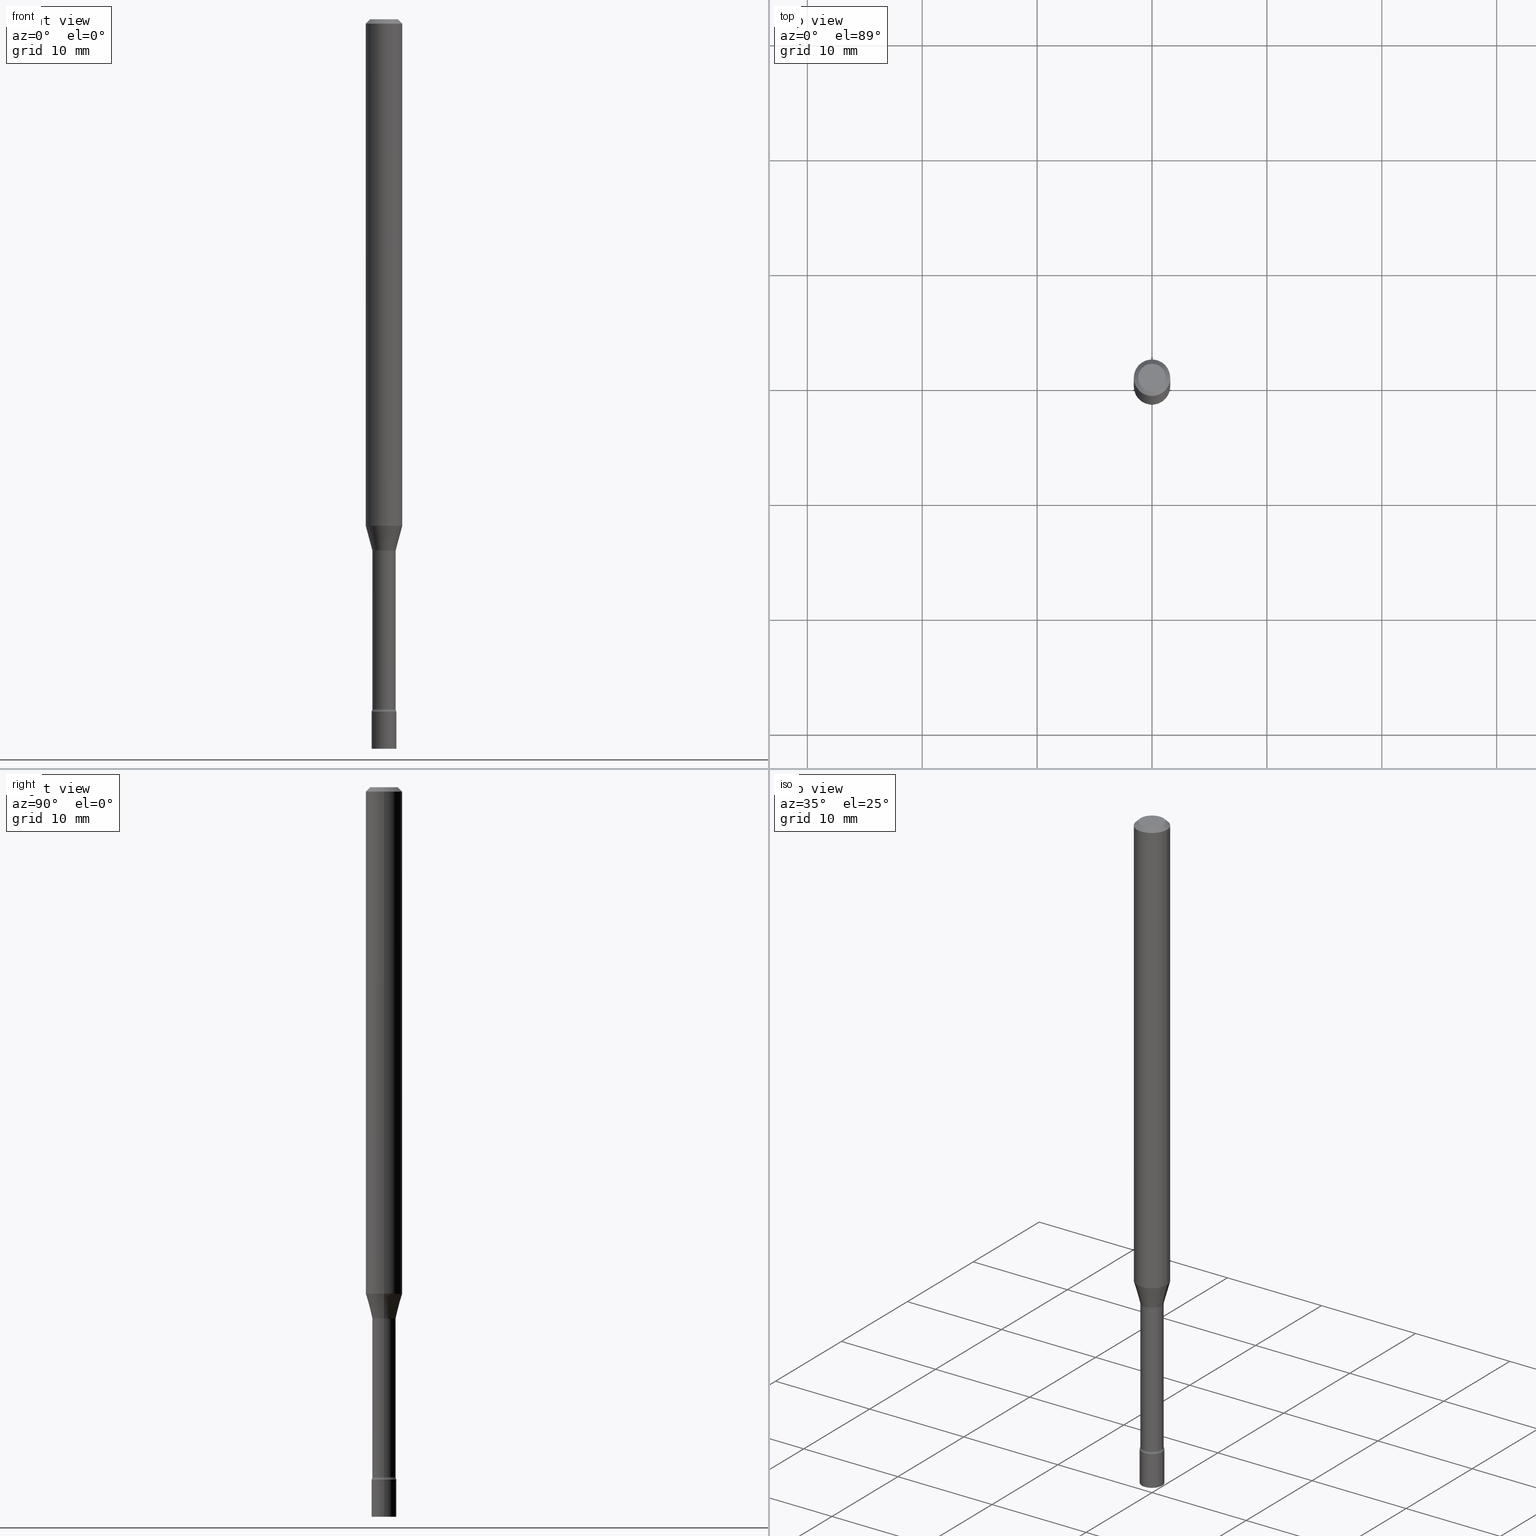
[diagram: canonical four-view strip — front | top / right | iso, engineering-drawing reading convention]
A machine part, canonical four-view strip (front | top / right | iso — engineering-drawing reading convention). The complete STEP part file that produces these views, byte-faithful:
ISO-10303-21;
HEADER;
FILE_DESCRIPTION (( 'STEP AP203' ),
    '1' );
FILE_NAME ('09734.STEP',
    '2024-03-09T01:25:39',
    ( '' ),
    ( '' ),
    'SwSTEP 2.0',
    'SolidWorks 2023',
    '' );
FILE_SCHEMA (( 'CONFIG_CONTROL_DESIGN' ));
ENDSEC;

DATA;
#1 = CIRCLE ( 'NONE', #408, 0.06250000000000000000 ) ;
#2 = CIRCLE ( 'NONE', #198, 0.04749999999999999362 ) ;
#3 = ORGANIZATION ( 'UNSPECIFIED', 'UNSPECIFIED', '' ) ;
#4 = CARTESIAN_POINT ( 'NONE',  ( 0.000000000000000000, 0.000000000000000000, 0.000000000000000000 ) ) ;
#5 = ORIENTED_EDGE ( 'NONE', *, *, #212, .F. ) ;
#6 = ADVANCED_FACE ( 'NONE', ( #141 ), #303, .T. ) ;
#7 = PERSON_AND_ORGANIZATION ( #216, #3 ) ;
#8 = DIRECTION ( 'NONE',  ( 1.000000000000000000, -6.982962677686266711E-15, 4.876176775795935793E-29 ) ) ;
#9 = ORIENTED_EDGE ( 'NONE', *, *, #414, .F. ) ;
#10 = APPLICATION_CONTEXT ( 'configuration controlled 3d designs of mechanical parts and assemblies' ) ;
#11 = CLOSED_SHELL ( 'NONE', ( #430, #333, #119, #347, #305, #244, #88, #174, #204, #394, #484, #474, #109, #183 ) ) ;
#12 = AXIS2_PLACEMENT_3D ( 'NONE', #36, #280, #211 ) ;
#13 = VERTEX_POINT ( 'NONE', #80 ) ;
#14 = PERSON_AND_ORGANIZATION ( #216, #3 ) ;
#15 = ORIENTED_EDGE ( 'NONE', *, *, #17, .T. ) ;
#16 = CALENDAR_DATE ( 2024, 8, 3 ) ;
#17 = EDGE_CURVE ( 'NONE', #218, #222, #506, .T. ) ;
#18 = PERSON_AND_ORGANIZATION ( #216, #3 ) ;
#19 = ORIENTED_EDGE ( 'NONE', *, *, #81, .T. ) ;
#20 =( CONVERSION_BASED_UNIT ( 'INCH', #53 ) LENGTH_UNIT ( ) NAMED_UNIT ( #466 ) );
#21 = LINE ( 'NONE', #135, #291 ) ;
#22 = CIRCLE ( 'NONE', #319, 0.03994999999999999246 ) ;
#23 = AXIS2_PLACEMENT_3D ( 'NONE', #294, #453, #263 ) ;
#24 = ORIENTED_EDGE ( 'NONE', *, *, #59, .F. ) ;
#25 = EDGE_CURVE ( 'NONE', #298, #349, #300, .T. ) ;
#26 = DIRECTION ( 'NONE',  ( -2.438088387897960049E-29, 3.491481338843145188E-15, 1.000000000000000000 ) ) ;
#27 = EDGE_LOOP ( 'NONE', ( #417, #429, #97, #344 ) ) ;
#28 = DIRECTION ( 'NONE',  ( -2.445468806185136597E-29, 3.491481338843145583E-15, 1.000000000000000000 ) ) ;
#29 = APPROVAL_STATUS ( 'not_yet_approved' ) ;
#30 = EDGE_LOOP ( 'NONE', ( #172, #350, #268, #127 ) ) ;
#31 = FACE_OUTER_BOUND ( 'NONE', #27, .T. ) ;
#32 = AXIS2_PLACEMENT_3D ( 'NONE', #197, #357, #513 ) ;
#33 = AXIS2_PLACEMENT_3D ( 'NONE', #213, #481, #152 ) ;
#34 = LOCAL_TIME ( 20, 25, 39.00000000000000000, #385 ) ;
#35 = CYLINDRICAL_SURFACE ( 'NONE', #492, 0.03995000000000000634 ) ;
#36 = CARTESIAN_POINT ( 'NONE',  ( 5.780192113673479644E-29, -8.252582428684399354E-15, -2.363633549139569023 ) ) ;
#37 = CARTESIAN_POINT ( 'NONE',  ( -0.05494999999999999885, -7.862139195384223915E-15, -2.363633549139569023 ) ) ;
#38 = DIRECTION ( 'NONE',  ( -2.445468806185136877E-29, 3.491481338843145188E-15, 1.000000000000000000 ) ) ;
#39 = DIRECTION ( 'NONE',  ( 2.445468806185136597E-29, -3.491481338843145583E-15, -1.000000000000000000 ) ) ;
#40 = CARTESIAN_POINT ( 'NONE',  ( 0.000000000000000000, 0.000000000000000000, 0.000000000000000000 ) ) ;
#41 = CARTESIAN_POINT ( 'NONE',  ( -0.04249999999999999611, -8.203267878723858989E-15, -2.500000000000000000 ) ) ;
#42 = AXIS2_PLACEMENT_3D ( 'NONE', #318, #111, #238 ) ;
#43 = CARTESIAN_POINT ( 'NONE',  ( 0.03995000000000000634, -2.789693589735664269E-16, 1.948032621930476817E-30 ) ) ;
#44 = DIRECTION ( 'NONE',  ( 1.000000000000000000, -6.982962677686276177E-15, 0.000000000000000000 ) ) ;
#45 = FACE_OUTER_BOUND ( 'NONE', #352, .T. ) ;
#46 = VERTEX_POINT ( 'NONE', #41 ) ;
#47 = ORIENTED_EDGE ( 'NONE', *, *, #194, .F. ) ;
#48 = EDGE_CURVE ( 'NONE', #176, #370, #337, .T. ) ;
#49 = AXIS2_PLACEMENT_3D ( 'NONE', #77, #39, #208 ) ;
#50 = LOCAL_TIME ( 20, 25, 39.00000000000000000, #336 ) ;
#51 = PERSON_AND_ORGANIZATION_ROLE ( 'design_owner' ) ;
#52 = EDGE_LOOP ( 'NONE', ( #105, #264, #89, #229 ) ) ;
#53 = LENGTH_MEASURE_WITH_UNIT ( LENGTH_MEASURE( 0.02539999999999999897 ), #441 );
#54 = CYLINDRICAL_SURFACE ( 'NONE', #465, 0.06250000000000000000 ) ;
#55 = MANIFOLD_SOLID_BREP ( 'Body-Move/Copy2[2]', #11 ) ;
#56 = DATE_AND_TIME ( #415, #508 ) ;
#57 = AXIS2_PLACEMENT_3D ( 'NONE', #516, #73, #157 ) ;
#58 = CONICAL_SURFACE ( 'NONE', #49, 0.06250000000000000000, 0.7853981633974483900 ) ;
#59 = EDGE_CURVE ( 'NONE', #427, #233, #402, .T. ) ;
#60 = ORIENTED_EDGE ( 'NONE', *, *, #444, .F. ) ;
#61 = CARTESIAN_POINT ( 'NONE',  ( 7.070806723891919892E-46, -1.009523804376275404E-31, -2.891391092786900929E-17 ) ) ;
#62 = ORIENTED_EDGE ( 'NONE', *, *, #59, .T. ) ;
#63 =( NAMED_UNIT ( * ) SI_UNIT ( $, .STERADIAN. ) SOLID_ANGLE_UNIT ( ) );
#64 = MANIFOLD_SOLID_BREP ( 'Body-Move/Copy2[1]', #84 ) ;
#65 = VERTEX_POINT ( 'NONE', #472 ) ;
#66 = EDGE_CURVE ( 'NONE', #124, #46, #113, .T. ) ;
#67 = PLANE ( 'NONE',  #85 ) ;
#68 = AXIS2_PLACEMENT_3D ( 'NONE', #327, #373, #169 ) ;
#69 = ORIENTED_EDGE ( 'NONE', *, *, #467, .F. ) ;
#70 = ORIENTED_EDGE ( 'NONE', *, *, #66, .T. ) ;
#71 = CARTESIAN_POINT ( 'NONE',  ( 3.316907271900976096E-16, 0.04749999999999999362, -1.803023190589839165E-16 ) ) ;
#72 = CARTESIAN_POINT ( 'NONE',  ( -0.04249999999999999611, 3.019806626980425514E-16, -2.090547413358334859E-30 ) ) ;
#73 = DIRECTION ( 'NONE',  ( -2.445468806185136597E-29, 3.491481338843145583E-15, 1.000000000000000000 ) ) ;
#74 = DIRECTION ( 'NONE',  ( 1.000000000000000000, -6.982962677686266711E-15, 4.876176775795935793E-29 ) ) ;
#75 = LINE ( 'NONE', #397, #162 ) ;
#76 = APPROVAL_PERSON_ORGANIZATION ( #382, #235, #203 ) ;
#77 = CARTESIAN_POINT ( 'NONE',  ( 3.668203209277712094E-31, -5.237222008264728876E-17, -0.01500000000000003067 ) ) ;
#78 = CARTESIAN_POINT ( 'NONE',  ( 5.800652008271142608E-29, -8.281793735735939519E-15, -2.371999999999999886 ) ) ;
#79 = DIRECTION ( 'NONE',  ( 1.000000000000000000, -6.982962677686276177E-15, 0.000000000000000000 ) ) ;
#80 = CARTESIAN_POINT ( 'NONE',  ( 0.03995000000000003409, -8.531551787657965879E-15, -2.363633549139569023 ) ) ;
#81 = EDGE_CURVE ( 'NONE', #233, #427, #485, .T. ) ;
#82 = DIRECTION ( 'NONE',  ( 7.105427357601001859E-15, 1.000000000000000000, -3.491481338843145583E-15 ) ) ;
#83 = DIRECTION ( 'NONE',  ( 1.000000000000000000, -6.982962677686265922E-15, 4.876176775795935793E-29 ) ) ;
#84 = CLOSED_SHELL ( 'NONE', ( #6, #296, #102, #518 ) ) ;
#85 = AXIS2_PLACEMENT_3D ( 'NONE', #228, #26, #431 ) ;
#86 = CC_DESIGN_DATE_AND_TIME_ASSIGNMENT ( #421, #358, ( #163 ) ) ;
#87 = CARTESIAN_POINT ( 'NONE',  ( 0.06250000000000000000, -4.811533449433680977E-16, -0.01500000000000003067 ) ) ;
#88 = ADVANCED_FACE ( 'NONE', ( #469 ), #128, .T. ) ;
#89 = ORIENTED_EDGE ( 'NONE', *, *, #25, .F. ) ;
#90 = APPROVAL_ROLE ( '' ) ;
#91 = CC_DESIGN_PERSON_AND_ORGANIZATION_ASSIGNMENT ( #248, #51, ( #170 ) ) ;
#92 = ORIENTED_EDGE ( 'NONE', *, *, #504, .T. ) ;
#93 = CIRCLE ( 'NONE', #447, 0.03995000000000003409 ) ;
#94 = CIRCLE ( 'NONE', #129, 0.01499999999999996822 ) ;
#95 = CARTESIAN_POINT ( 'NONE',  ( 4.446088499879871931E-29, -6.347836042280913352E-15, -1.818092501787273330 ) ) ;
#96 = VERTEX_POINT ( 'NONE', #509 ) ;
#97 = ORIENTED_EDGE ( 'NONE', *, *, #444, .T. ) ;
#98 = TOROIDAL_SURFACE ( 'NONE', #33, 0.05494999999999999885, 0.01500000000000002373 ) ;
#99 = VERTEX_POINT ( 'NONE', #206 ) ;
#100 = PRODUCT_DEFINITION_SHAPE ( 'NONE', 'NONE',  #240 ) ;
#101 = DIRECTION ( 'NONE',  ( 1.000000000000000000, -6.982962677686255667E-15, 0.000000000000000000 ) ) ;
#102 = ADVANCED_FACE ( 'NONE', ( #279 ), #110, .T. ) ;
#103 = DIRECTION ( 'NONE',  ( -2.445468806185136597E-29, 3.491481338843145583E-15, 1.000000000000000000 ) ) ;
#104 = CARTESIAN_POINT ( 'NONE',  ( -0.03995000000000003409, -7.974266839393067657E-15, -2.363633549139569023 ) ) ;
#105 = ORIENTED_EDGE ( 'NONE', *, *, #251, .T. ) ;
#106 = APPROVAL ( #468, 'UNSPECIFIED' ) ;
#107 = DIRECTION ( 'NONE',  ( 0.2588190451025205174, 1.565188264969628476E-15, 0.9659258262890684232 ) ) ;
#108 = EDGE_LOOP ( 'NONE', ( #9, #246, #331, #15 ) ) ;
#109 = ADVANCED_FACE ( 'NONE', ( #164 ), #272, .T. ) ;
#110 = CYLINDRICAL_SURFACE ( 'NONE', #395, 0.04249999999999999611 ) ;
#111 = DIRECTION ( 'NONE',  ( -2.445468806185136597E-29, 3.491481338843145583E-15, 1.000000000000000000 ) ) ;
#112 = DIRECTION ( 'NONE',  ( 1.000000000000000000, -6.982962677686267499E-15, 4.876176775795936353E-29 ) ) ;
#113 = CIRCLE ( 'NONE', #354, 0.04249999999999999611 ) ;
#114 = DIRECTION ( 'NONE',  ( -0.7071067811865475727, 2.468850131082257455E-15, -0.7071067811865474617 ) ) ;
#115 = APPROVAL_DATE_TIME ( #510, #433 ) ;
#116 = AXIS2_PLACEMENT_3D ( 'NONE', #205, #28, #470 ) ;
#117 = DIRECTION ( 'NONE',  ( -0.2588190451025205174, 5.211531920934544731E-15, 0.9659258262890684232 ) ) ;
#118 = DIRECTION ( 'NONE',  ( -2.445468806185136597E-29, 3.491481338843145583E-15, 1.000000000000000000 ) ) ;
#119 = ADVANCED_FACE ( 'NONE', ( #120 ), #167, .F. ) ;
#120 = FACE_OUTER_BOUND ( 'NONE', #458, .T. ) ;
#121 = CARTESIAN_POINT ( 'NONE',  ( 5.800652008271142608E-29, -8.281793735735939519E-15, -2.371999999999999886 ) ) ;
#122 = LINE ( 'NONE', #87, #500 ) ;
#123 = CIRCLE ( 'NONE', #416, 0.04046111260566398471 ) ;
#124 = VERTEX_POINT ( 'NONE', #391 ) ;
#125 = DIRECTION ( 'NONE',  ( 1.000000000000000000, -6.982962677686269866E-15, 0.000000000000000000 ) ) ;
#126 = EDGE_LOOP ( 'NONE', ( #47, #191, #292, #24 ) ) ;
#127 = ORIENTED_EDGE ( 'NONE', *, *, #154, .F. ) ;
#128 = CONICAL_SURFACE ( 'NONE', #32, 0.04046111260566398471, 0.2617993877991491858 ) ;
#129 = AXIS2_PLACEMENT_3D ( 'NONE', #202, #328, #242 ) ;
#130 = FACE_OUTER_BOUND ( 'NONE', #108, .T. ) ;
#131 = ORIENTED_EDGE ( 'NONE', *, *, #132, .F. ) ;
#132 = EDGE_CURVE ( 'NONE', #349, #298, #1, .T. ) ;
#133 = CARTESIAN_POINT ( 'NONE',  ( 0.04249999999999999611, -8.578569649537607747E-15, -2.371999999999999886 ) ) ;
#134 = ORIENTED_EDGE ( 'NONE', *, *, #325, .T. ) ;
#135 = CARTESIAN_POINT ( 'NONE',  ( 0.06250000000000000000, -4.364351673553916694E-16, 3.047610484872459871E-30 ) ) ;
#136 = ORIENTED_EDGE ( 'NONE', *, *, #66, .F. ) ;
#137 = PERSON_AND_ORGANIZATION ( #216, #3 ) ;
#138 = TOROIDAL_SURFACE ( 'NONE', #321, 0.05494999999999999885, 0.01500000000000002373 ) ;
#139 = CIRCLE ( 'NONE', #68, 0.06250000000000000000 ) ;
#140 = DIRECTION ( 'NONE',  ( 1.000000000000000000, -6.982962677686267499E-15, 4.876681293081646444E-29 ) ) ;
#141 = FACE_OUTER_BOUND ( 'NONE', #168, .T. ) ;
#142 = MECHANICAL_CONTEXT ( 'NONE', #10, 'mechanical' ) ;
#143 = DIRECTION ( 'NONE',  ( -6.982962677686266711E-15, -1.000000000000000000, 3.491481338843145583E-15 ) ) ;
#144 = CC_DESIGN_DATE_AND_TIME_ASSIGNMENT ( #56, #257, ( #240 ) ) ;
#145 = EDGE_LOOP ( 'NONE', ( #19, #62 ) ) ;
#146 = DIRECTION ( 'NONE',  ( 1.000000000000000000, -6.982962677686262766E-15, 0.000000000000000000 ) ) ;
#147 = CARTESIAN_POINT ( 'NONE',  ( 0.05494999999999999885, -6.745104769411463834E-15, -1.821974787463811252 ) ) ;
#148 = ORIENTED_EDGE ( 'NONE', *, *, #25, .T. ) ;
#149 = CARTESIAN_POINT ( 'NONE',  ( 0.06250000000000000000, -6.497096005381978021E-15, -1.735842254289321929 ) ) ;
#150 = DIRECTION ( 'NONE',  ( -2.445468806185136597E-29, 3.491481338843145583E-15, 1.000000000000000000 ) ) ;
#151 = AXIS2_PLACEMENT_3D ( 'NONE', #180, #340, #419 ) ;
#152 = DIRECTION ( 'NONE',  ( 1.000000000000000000, -6.982962677686269866E-15, 4.883557194083114022E-29 ) ) ;
#153 = APPROVAL_PERSON_ORGANIZATION ( #234, #433, #269 ) ;
#154 = EDGE_CURVE ( 'NONE', #222, #218, #22, .T. ) ;
#155 = CARTESIAN_POINT ( 'NONE',  ( 0.04046111260566398471, -6.630374481503926713E-15, -1.818092501787273330 ) ) ;
#156 = DIRECTION ( 'NONE',  ( 1.000000000000000000, -6.982962677686254089E-15, 0.000000000000000000 ) ) ;
#157 = DIRECTION ( 'NONE',  ( 1.000000000000000000, -6.982962677686267499E-15, 4.876681293081646444E-29 ) ) ;
#158 = LINE ( 'NONE', #155, #396 ) ;
#159 = CARTESIAN_POINT ( 'NONE',  ( 2.967759138017274423E-16, 0.04249999999999127392, -2.500000000000000000 ) ) ;
#160 = FACE_OUTER_BOUND ( 'NONE', #375, .T. ) ;
#161 = EDGE_CURVE ( 'NONE', #290, #13, #93, .T. ) ;
#162 = VECTOR ( 'NONE', #439, 39.37007874015748143 ) ;
#163 = SECURITY_CLASSIFICATION ( '', '', #496 ) ;
#164 = FACE_OUTER_BOUND ( 'NONE', #30, .T. ) ;
#165 = LINE ( 'NONE', #43, #409 ) ;
#166 = LINE ( 'NONE', #401, #387 ) ;
#167 = TOROIDAL_SURFACE ( 'NONE', #236, 0.05494999999999999885, 0.01499999999999996995 ) ;
#168 = EDGE_LOOP ( 'NONE', ( #70, #306, #255, #392 ) ) ;
#169 = DIRECTION ( 'NONE',  ( 1.000000000000000000, -6.982962677686266711E-15, 0.000000000000000000 ) ) ;
#170 = PRODUCT ( '09734', '09734', '', ( #142 ) ) ;
#171 = DIRECTION ( 'NONE',  ( 0.000000000000000000, 0.000000000000000000, 1.000000000000000000 ) ) ;
#172 = ORIENTED_EDGE ( 'NONE', *, *, #271, .F. ) ;
#173 = APPROVAL_DATE_TIME ( #499, #235 ) ;
#174 = ADVANCED_FACE ( 'NONE', ( #411 ), #54, .T. ) ;
#175 = CARTESIAN_POINT ( 'NONE',  ( 0.04749999999999999362, -4.035134999187579609E-16, -2.891391092786643933E-17 ) ) ;
#176 = VERTEX_POINT ( 'NONE', #175 ) ;
#177 = PERSON_AND_ORGANIZATION_ROLE ( 'design_supplier' ) ;
#178 =( GEOMETRIC_REPRESENTATION_CONTEXT ( 3 ) GLOBAL_UNCERTAINTY_ASSIGNED_CONTEXT ( ( #252 ) ) GLOBAL_UNIT_ASSIGNED_CONTEXT ( ( #20, #388, #63 ) ) REPRESENTATION_CONTEXT ( 'NONE', 'WORKASPACE' ) );
#179 = LOCAL_TIME ( 20, 25, 39.00000000000000000, #372 ) ;
#180 = CARTESIAN_POINT ( 'NONE',  ( 6.113672015462842613E-29, -8.728703347107864943E-15, -2.500000000000000000 ) ) ;
#181 = ORIENTED_EDGE ( 'NONE', *, *, #342, .F. ) ;
#182 = ORIENTED_EDGE ( 'NONE', *, *, #219, .F. ) ;
#183 = ADVANCED_FACE ( 'NONE', ( #130 ), #98, .F. ) ;
#184 = CARTESIAN_POINT ( 'NONE',  ( 3.668203209277712094E-31, -5.237222008264728876E-17, -0.01500000000000003067 ) ) ;
#185 = ORIENTED_EDGE ( 'NONE', *, *, #259, .F. ) ;
#186 = PERSON_AND_ORGANIZATION_ROLE ( 'classification_officer' ) ;
#187 = PRODUCT_RELATED_PRODUCT_CATEGORY ( 'detail', '', ( #170 ) ) ;
#188 = TOROIDAL_SURFACE ( 'NONE', #12, 0.05494999999999999885, 0.01499999999999996995 ) ;
#189 = ORIENTED_EDGE ( 'NONE', *, *, #363, .T. ) ;
#190 = DIRECTION ( 'NONE',  ( 1.000000000000000000, 0.000000000000000000, 0.000000000000000000 ) ) ;
#191 = ORIENTED_EDGE ( 'NONE', *, *, #259, .T. ) ;
#192 = CARTESIAN_POINT ( 'NONE',  ( 0.06250000000000000000, -4.888073874380389458E-16, -0.01500000000000003067 ) ) ;
#193 = DIRECTION ( 'NONE',  ( 1.000000000000000000, -6.982962677686276177E-15, 0.000000000000000000 ) ) ;
#194 = EDGE_CURVE ( 'NONE', #46, #427, #284, .T. ) ;
#195 = ORIENTED_EDGE ( 'NONE', *, *, #504, .F. ) ;
#196 = FACE_OUTER_BOUND ( 'NONE', #215, .T. ) ;
#197 = CARTESIAN_POINT ( 'NONE',  ( 4.446088499879871931E-29, -6.347836042280913352E-15, -1.818092501787273330 ) ) ;
#198 = AXIS2_PLACEMENT_3D ( 'NONE', #61, #348, #140 ) ;
#199 = CC_DESIGN_APPROVAL ( #235, ( #379 ) ) ;
#200 = CC_DESIGN_PERSON_AND_ORGANIZATION_ASSIGNMENT ( #18, #422, ( #240 ) ) ;
#201 = DIRECTION ( 'NONE',  ( -2.445468806185136597E-29, 3.491481338843145583E-15, 1.000000000000000000 ) ) ;
#202 = CARTESIAN_POINT ( 'NONE',  ( 0.05494999999999999885, -8.636296227823259249E-15, -2.363633549139569023 ) ) ;
#203 = APPROVAL_ROLE ( '' ) ;
#204 = ADVANCED_FACE ( 'NONE', ( #31 ), #237, .T. ) ;
#205 = CARTESIAN_POINT ( 'NONE',  ( 5.800652008271142608E-29, -8.281793735735939519E-15, -2.371999999999999886 ) ) ;
#206 = CARTESIAN_POINT ( 'NONE',  ( -0.06250000000000000000, -2.612427319204554296E-15, -0.01500000000000003067 ) ) ;
#207 = PLANE ( 'NONE',  #477 ) ;
#208 = DIRECTION ( 'NONE',  ( -1.000000000000000000, 6.982962677686266711E-15, 0.000000000000000000 ) ) ;
#209 = AXIS2_PLACEMENT_3D ( 'NONE', #159, #317, #398 ) ;
#210 = CARTESIAN_POINT ( 'NONE',  ( 6.113672015462842613E-29, -8.728703347107864943E-15, -2.500000000000000000 ) ) ;
#211 = DIRECTION ( 'NONE',  ( 1.000000000000000000, -6.982962677686261977E-15, 4.883557194083111219E-29 ) ) ;
#212 = EDGE_CURVE ( 'NONE', #65, #96, #123, .T. ) ;
#213 = CARTESIAN_POINT ( 'NONE',  ( 4.455582508398544114E-29, -6.361390970272603150E-15, -1.821974787463811252 ) ) ;
#214 = AXIS2_PLACEMENT_3D ( 'NONE', #95, #424, #376 ) ;
#215 = EDGE_LOOP ( 'NONE', ( #390, #309, #501, #60 ) ) ;
#216 = PERSON ( 'UNSPECIFIED', 'UNSPECIFIED', 'UNSPECIFIED', ('UNSPECIFIED'), ('UNSPECIFIED'), ('UNSPECIFIED') ) ;
#217 = CC_DESIGN_SECURITY_CLASSIFICATION ( #163, ( #379 ) ) ;
#218 = VERTEX_POINT ( 'NONE', #383 ) ;
#219 = EDGE_CURVE ( 'NONE', #298, #381, #21, .T. ) ;
#220 = CARTESIAN_POINT ( 'NONE',  ( 0.000000000000000000, 0.000000000000000000, 0.000000000000000000 ) ) ;
#221 = ORIENTED_EDGE ( 'NONE', *, *, #490, .T. ) ;
#222 = VERTEX_POINT ( 'NONE', #494 ) ;
#223 = LINE ( 'NONE', #254, #258 ) ;
#224 = ORIENTED_EDGE ( 'NONE', *, *, #230, .F. ) ;
#225 = APPLICATION_CONTEXT ( 'configuration controlled 3d designs of mechanical parts and assemblies' ) ;
#226 = ORIENTED_EDGE ( 'NONE', *, *, #212, .T. ) ;
#227 = CIRCLE ( 'NONE', #346, 0.01499999999999996822 ) ;
#228 = CARTESIAN_POINT ( 'NONE',  ( 5.800652008271142608E-29, -8.281793735735939519E-15, -2.371999999999999886 ) ) ;
#229 = ORIENTED_EDGE ( 'NONE', *, *, #325, .F. ) ;
#230 = EDGE_CURVE ( 'NONE', #96, #218, #507, .T. ) ;
#231 = CARTESIAN_POINT ( 'NONE',  ( -0.04749999999999999362, 3.578768372314209027E-16, -2.891391092787141902E-17 ) ) ;
#232 = DIRECTION ( 'NONE',  ( 1.000000000000000000, -6.982962677686267499E-15, 4.876176775795936353E-29 ) ) ;
#233 = VERTEX_POINT ( 'NONE', #133 ) ;
#234 = PERSON_AND_ORGANIZATION ( #216, #3 ) ;
#235 = APPROVAL ( #29, 'UNSPECIFIED' ) ;
#236 = AXIS2_PLACEMENT_3D ( 'NONE', #315, #313, #471 ) ;
#237 = CONICAL_SURFACE ( 'NONE', #266, 0.06250000000000000000, 0.7853981633974483900 ) ;
#238 = DIRECTION ( 'NONE',  ( 1.000000000000000000, -6.982962677686276966E-15, 0.000000000000000000 ) ) ;
#239 = CARTESIAN_POINT ( 'NONE',  ( -0.06250000000000000000, -5.616571628176523735E-15, -1.735842254289321929 ) ) ;
#240 = PRODUCT_DEFINITION ( 'UNKNOWN', '', #379, #406 ) ;
#241 = CARTESIAN_POINT ( 'NONE',  ( 4.244948085322624823E-29, -6.060660838026585563E-15, -1.735842254289321929 ) ) ;
#242 = DIRECTION ( 'NONE',  ( 1.000000000000000000, -6.982962677686283277E-15, 0.000000000000000000 ) ) ;
#243 = AXIS2_PLACEMENT_3D ( 'NONE', #121, #118, #79 ) ;
#244 = ADVANCED_FACE ( 'NONE', ( #451 ), #457, .T. ) ;
#245 = CARTESIAN_POINT ( 'NONE',  ( -0.04249999999999997530, -7.979813073037897066E-15, -2.371999999999999886 ) ) ;
#246 = ORIENTED_EDGE ( 'NONE', *, *, #251, .F. ) ;
#247 = ORIENTED_EDGE ( 'NONE', *, *, #219, .T. ) ;
#248 = PERSON_AND_ORGANIZATION ( #216, #3 ) ;
#249 = CIRCLE ( 'NONE', #243, 0.04249999999999999611 ) ;
#250 = ORIENTED_EDGE ( 'NONE', *, *, #282, .T. ) ;
#251 = EDGE_CURVE ( 'NONE', #96, #65, #338, .T. ) ;
#252 = UNCERTAINTY_MEASURE_WITH_UNIT (LENGTH_MEASURE( 1.000000000000000082E-05 ), #20, 'distance_accuracy_value', 'NONE');
#253 = ORIENTED_EDGE ( 'NONE', *, *, #132, .T. ) ;
#254 = CARTESIAN_POINT ( 'NONE',  ( -0.03995000000000000634, 2.838618229361600693E-16, -1.965114568556835300E-30 ) ) ;
#255 = ORIENTED_EDGE ( 'NONE', *, *, #81, .F. ) ;
#256 = AXIS2_PLACEMENT_3D ( 'NONE', #78, #150, #193 ) ;
#257 = DATE_TIME_ROLE ( 'creation_date' ) ;
#258 = VECTOR ( 'NONE', #502, 39.37007874015748143 ) ;
#259 = EDGE_CURVE ( 'NONE', #46, #124, #378, .T. ) ;
#260 = ORIENTED_EDGE ( 'NONE', *, *, #282, .F. ) ;
#261 = DIRECTION ( 'NONE',  ( 1.000000000000000000, -6.982962677686276177E-15, 0.000000000000000000 ) ) ;
#262 = DIRECTION ( 'NONE',  ( 1.000000000000000000, -6.982962677686267499E-15, 4.876176775795935793E-29 ) ) ;
#263 = DIRECTION ( 'NONE',  ( 1.000000000000000000, -6.982962677686269866E-15, 0.000000000000000000 ) ) ;
#264 = ORIENTED_EDGE ( 'NONE', *, *, #342, .T. ) ;
#265 = EDGE_CURVE ( 'NONE', #370, #176, #2, .T. ) ;
#266 = AXIS2_PLACEMENT_3D ( 'NONE', #323, #478, #278 ) ;
#267 = DIRECTION ( 'NONE',  ( 7.105427357601001859E-15, 1.000000000000000000, -3.491481338843145583E-15 ) ) ;
#268 = ORIENTED_EDGE ( 'NONE', *, *, #450, .T. ) ;
#269 = APPROVAL_ROLE ( '' ) ;
#270 = DIRECTION ( 'NONE',  ( 2.438088387897960049E-29, -3.491481338843145188E-15, -1.000000000000000000 ) ) ;
#271 = EDGE_CURVE ( 'NONE', #290, #222, #223, .T. ) ;
#272 = CYLINDRICAL_SURFACE ( 'NONE', #456, 0.03995000000000000634 ) ;
#273 = DIRECTION ( 'NONE',  ( -2.445468806185136597E-29, 3.491481338843145583E-15, 1.000000000000000000 ) ) ;
#274 = AXIS2_PLACEMENT_3D ( 'NONE', #241, #361, #476 ) ;
#275 = CARTESIAN_POINT ( 'NONE',  ( -0.04046111260566398471, -6.060342545853654507E-15, -1.818092501787273330 ) ) ;
#276 = VECTOR ( 'NONE', #316, 39.37007874015748143 ) ;
#277 = CARTESIAN_POINT ( 'NONE',  ( 0.000000000000000000, 0.000000000000000000, 0.000000000000000000 ) ) ;
#278 = DIRECTION ( 'NONE',  ( -1.000000000000000000, 6.982962677686266711E-15, 0.000000000000000000 ) ) ;
#279 = FACE_OUTER_BOUND ( 'NONE', #126, .T. ) ;
#280 = DIRECTION ( 'NONE',  ( -2.445468806185136597E-29, 3.491481338843145583E-15, 1.000000000000000000 ) ) ;
#281 = DIRECTION ( 'NONE',  ( -2.445468806185136597E-29, 3.491481338843145583E-15, 1.000000000000000000 ) ) ;
#282 = EDGE_CURVE ( 'NONE', #13, #290, #487, .T. ) ;
#283 = LINE ( 'NONE', #442, #436 ) ;
#284 = LINE ( 'NONE', #72, #276 ) ;
#285 = AXIS2_PLACEMENT_3D ( 'NONE', #4, #171, #190 ) ;
#286 = CC_DESIGN_PERSON_AND_ORGANIZATION_ASSIGNMENT ( #14, #177, ( #379 ) ) ;
#287 = ORIENTED_EDGE ( 'NONE', *, *, #450, .F. ) ;
#288 = EDGE_CURVE ( 'NONE', #99, #381, #448, .T. ) ;
#289 = APPLICATION_PROTOCOL_DEFINITION ( 'international standard', 'config_control_design', 1994, #10 ) ;
#290 = VERTEX_POINT ( 'NONE', #104 ) ;
#291 = VECTOR ( 'NONE', #497, 39.37007874015748143 ) ;
#292 = ORIENTED_EDGE ( 'NONE', *, *, #511, .T. ) ;
#293 = APPROVAL_DATE_TIME ( #413, #106 ) ;
#294 = CARTESIAN_POINT ( 'NONE',  ( 5.780192113673479644E-29, -8.252582428684399354E-15, -2.363633549139569023 ) ) ;
#295 = ORIENTED_EDGE ( 'NONE', *, *, #363, .F. ) ;
#296 = ADVANCED_FACE ( 'NONE', ( #426 ), #67, .T. ) ;
#297 = CARTESIAN_POINT ( 'NONE',  ( 4.446088499879871931E-29, -6.347836042280913352E-15, -1.818092501787273330 ) ) ;
#298 = VERTEX_POINT ( 'NONE', #149 ) ;
#299 = CALENDAR_DATE ( 2024, 8, 3 ) ;
#300 = CIRCLE ( 'NONE', #274, 0.06250000000000000000 ) ;
#301 = AXIS2_PLACEMENT_3D ( 'NONE', #308, #438, #74 ) ;
#302 = CC_DESIGN_PERSON_AND_ORGANIZATION_ASSIGNMENT ( #137, #186, ( #163 ) ) ;
#303 = CYLINDRICAL_SURFACE ( 'NONE', #386, 0.04249999999999999611 ) ;
#304 = DIRECTION ( 'NONE',  ( -2.445468806185136597E-29, 3.491481338843145583E-15, 1.000000000000000000 ) ) ;
#305 = ADVANCED_FACE ( 'NONE', ( #512 ), #314, .T. ) ;
#306 = ORIENTED_EDGE ( 'NONE', *, *, #194, .T. ) ;
#307 = COORDINATED_UNIVERSAL_TIME_OFFSET ( 5, 0, .BEHIND. ) ;
#308 = CARTESIAN_POINT ( 'NONE',  ( 0.000000000000000000, 0.000000000000000000, 0.000000000000000000 ) ) ;
#309 = ORIENTED_EDGE ( 'NONE', *, *, #440, .T. ) ;
#310 = SHAPE_DEFINITION_REPRESENTATION ( #100, #332 ) ;
#311 = LOCAL_TIME ( 20, 25, 39.00000000000000000, #307 ) ;
#312 = PLANE ( 'NONE',  #368 ) ;
#313 = DIRECTION ( 'NONE',  ( -2.445468806185136597E-29, 3.491481338843145583E-15, 1.000000000000000000 ) ) ;
#314 = CYLINDRICAL_SURFACE ( 'NONE', #301, 0.06250000000000000000 ) ;
#315 = CARTESIAN_POINT ( 'NONE',  ( 5.780192113673479644E-29, -8.252582428684399354E-15, -2.363633549139569023 ) ) ;
#316 = DIRECTION ( 'NONE',  ( -2.445468806185136877E-29, 3.491481338843145188E-15, 1.000000000000000000 ) ) ;
#317 = DIRECTION ( 'NONE',  ( 2.438088387897960049E-29, -3.491481338843145188E-15, -1.000000000000000000 ) ) ;
#318 = CARTESIAN_POINT ( 'NONE',  ( 4.455582508398544114E-29, -6.361390970272603150E-15, -1.821974787463811252 ) ) ;
#319 = AXIS2_PLACEMENT_3D ( 'NONE', #435, #520, #486 ) ;
#320 = LINE ( 'NONE', #275, #428 ) ;
#321 = AXIS2_PLACEMENT_3D ( 'NONE', #482, #365, #483 ) ;
#322 = APPROVAL_PERSON_ORGANIZATION ( #7, #106, #90 ) ;
#323 = CARTESIAN_POINT ( 'NONE',  ( 3.668203209277712094E-31, -5.237222008264728876E-17, -0.01500000000000003067 ) ) ;
#324 = CARTESIAN_POINT ( 'NONE',  ( 2.967759138017242869E-16, 0.04249999999999171801, -2.371999999999999886 ) ) ;
#325 = EDGE_CURVE ( 'NONE', #96, #298, #158, .T. ) ;
#326 = CC_DESIGN_PERSON_AND_ORGANIZATION_ASSIGNMENT ( #493, #449, ( #379 ) ) ;
#327 = CARTESIAN_POINT ( 'NONE',  ( 3.668203209277712094E-31, -5.237222008264728876E-17, -0.01500000000000003067 ) ) ;
#328 = DIRECTION ( 'NONE',  ( -6.982962677686266711E-15, -1.000000000000000000, 3.491481338843145583E-15 ) ) ;
#329 = AXIS2_PLACEMENT_3D ( 'NONE', #297, #455, #261 ) ;
#330 = DIRECTION ( 'NONE',  ( -2.445468806185136597E-29, 3.491481338843145583E-15, 1.000000000000000000 ) ) ;
#331 = ORIENTED_EDGE ( 'NONE', *, *, #230, .T. ) ;
#332 = ADVANCED_BREP_SHAPE_REPRESENTATION ( '09734', ( #64, #55, #285 ), #178 ) ;
#333 = ADVANCED_FACE ( 'NONE', ( #160 ), #35, .T. ) ;
#334 = CARTESIAN_POINT ( 'NONE',  ( -0.05494999999999999885, -5.970947736972427711E-15, -1.821974787463811252 ) ) ;
#335 = ORIENTED_EDGE ( 'NONE', *, *, #161, .F. ) ;
#336 = COORDINATED_UNIVERSAL_TIME_OFFSET ( 5, 0, .BEHIND. ) ;
#337 = CIRCLE ( 'NONE', #57, 0.04749999999999999362 ) ;
#338 = CIRCLE ( 'NONE', #214, 0.04046111260566398471 ) ;
#339 = EDGE_LOOP ( 'NONE', ( #136, #185 ) ) ;
#340 = DIRECTION ( 'NONE',  ( -2.445468806185136597E-29, 3.491481338843145583E-15, 1.000000000000000000 ) ) ;
#341 = ORIENTED_EDGE ( 'NONE', *, *, #265, .T. ) ;
#342 = EDGE_CURVE ( 'NONE', #65, #349, #320, .T. ) ;
#343 = DIRECTION ( 'NONE',  ( 1.000000000000000000, -6.982962677686276177E-15, 0.000000000000000000 ) ) ;
#344 = ORIENTED_EDGE ( 'NONE', *, *, #288, .T. ) ;
#345 = ORIENTED_EDGE ( 'NONE', *, *, #490, .F. ) ;
#346 = AXIS2_PLACEMENT_3D ( 'NONE', #37, #267, #356 ) ;
#347 = ADVANCED_FACE ( 'NONE', ( #196 ), #58, .T. ) ;
#348 = DIRECTION ( 'NONE',  ( -2.445468806185136597E-29, 3.491481338843145583E-15, 1.000000000000000000 ) ) ;
#349 = VERTEX_POINT ( 'NONE', #239 ) ;
#350 = ORIENTED_EDGE ( 'NONE', *, *, #161, .T. ) ;
#351 = FACE_OUTER_BOUND ( 'NONE', #498, .T. ) ;
#352 = EDGE_LOOP ( 'NONE', ( #295, #260, #221, #463 ) ) ;
#353 = CALENDAR_DATE ( 2024, 8, 3 ) ;
#354 = AXIS2_PLACEMENT_3D ( 'NONE', #210, #273, #156 ) ;
#355 = AXIS2_PLACEMENT_3D ( 'NONE', #184, #304, #461 ) ;
#356 = DIRECTION ( 'NONE',  ( -1.000000000000000000, 7.105427357601006592E-15, 0.000000000000000000 ) ) ;
#357 = DIRECTION ( 'NONE',  ( -2.445468806185136597E-29, 3.491481338843145583E-15, 1.000000000000000000 ) ) ;
#358 = DATE_TIME_ROLE ( 'classification_date' ) ;
#359 = FACE_OUTER_BOUND ( 'NONE', #339, .T. ) ;
#360 = DIRECTION ( 'NONE',  ( -2.438088387897960049E-29, 3.491481338843145188E-15, 1.000000000000000000 ) ) ;
#361 = DIRECTION ( 'NONE',  ( -2.445468806185136597E-29, 3.491481338843145583E-15, 1.000000000000000000 ) ) ;
#362 = AXIS2_PLACEMENT_3D ( 'NONE', #334, #82, #489 ) ;
#363 = EDGE_CURVE ( 'NONE', #290, #462, #227, .T. ) ;
#364 = DIRECTION ( 'NONE',  ( 1.000000000000000000, -6.982962677686267499E-15, 4.876176775795935793E-29 ) ) ;
#365 = DIRECTION ( 'NONE',  ( -2.445468806185136597E-29, 3.491481338843145583E-15, 1.000000000000000000 ) ) ;
#366 = FACE_OUTER_BOUND ( 'NONE', #407, .T. ) ;
#367 = FACE_OUTER_BOUND ( 'NONE', #425, .T. ) ;
#368 = AXIS2_PLACEMENT_3D ( 'NONE', #71, #270, #432 ) ;
#369 = CC_DESIGN_APPROVAL ( #433, ( #163 ) ) ;
#370 = VERTEX_POINT ( 'NONE', #231 ) ;
#371 = APPLICATION_PROTOCOL_DEFINITION ( 'international standard', 'config_control_design', 1994, #225 ) ;
#372 = COORDINATED_UNIVERSAL_TIME_OFFSET ( 5, 0, .BEHIND. ) ;
#373 = DIRECTION ( 'NONE',  ( -2.445468806185136597E-29, 3.491481338843145583E-15, 1.000000000000000000 ) ) ;
#374 = DIRECTION ( 'NONE',  ( -2.445468806185136597E-29, 3.491481338843145583E-15, 1.000000000000000000 ) ) ;
#375 = EDGE_LOOP ( 'NONE', ( #250, #445, #443, #287 ) ) ;
#376 = DIRECTION ( 'NONE',  ( 1.000000000000000000, -6.982962677686276177E-15, 0.000000000000000000 ) ) ;
#377 = EDGE_CURVE ( 'NONE', #462, #495, #517, .T. ) ;
#378 = CIRCLE ( 'NONE', #151, 0.04249999999999999611 ) ;
#379 = PRODUCT_DEFINITION_FORMATION_WITH_SPECIFIED_SOURCE ( 'ANY', '', #170, .NOT_KNOWN. ) ;
#380 = EDGE_LOOP ( 'NONE', ( #181, #226, #134, #131 ) ) ;
#381 = VERTEX_POINT ( 'NONE', #192 ) ;
#382 = PERSON_AND_ORGANIZATION ( #216, #3 ) ;
#383 = CARTESIAN_POINT ( 'NONE',  ( 0.03994999999999999246, -6.640360329246169675E-15, -1.821974787463811252 ) ) ;
#384 = ORIENTED_EDGE ( 'NONE', *, *, #288, .F. ) ;
#385 = COORDINATED_UNIVERSAL_TIME_OFFSET ( 5, 0, .BEHIND. ) ;
#386 = AXIS2_PLACEMENT_3D ( 'NONE', #460, #103, #262 ) ;
#387 = VECTOR ( 'NONE', #38, 39.37007874015748143 ) ;
#388 =( NAMED_UNIT ( * ) PLANE_ANGLE_UNIT ( ) SI_UNIT ( $, .RADIAN. ) );
#389 = DIRECTION ( 'NONE',  ( -2.445468806185136597E-29, 3.491481338843145583E-15, 1.000000000000000000 ) ) ;
#390 = ORIENTED_EDGE ( 'NONE', *, *, #48, .F. ) ;
#391 = CARTESIAN_POINT ( 'NONE',  ( 0.04249999999999999611, -9.025479260909530016E-15, -2.500000000000000000 ) ) ;
#392 = ORIENTED_EDGE ( 'NONE', *, *, #511, .F. ) ;
#393 = APPROVAL_STATUS ( 'not_yet_approved' ) ;
#394 = ADVANCED_FACE ( 'NONE', ( #351 ), #312, .F. ) ;
#395 = AXIS2_PLACEMENT_3D ( 'NONE', #40, #475, #364 ) ;
#396 = VECTOR ( 'NONE', #107, 39.37007874015748143 ) ;
#397 = CARTESIAN_POINT ( 'NONE',  ( 0.04249999999999999611, -2.967759138016663549E-16, 2.072375129713272502E-30 ) ) ;
#398 = DIRECTION ( 'NONE',  ( -1.000000000000000000, 6.982962677686265922E-15, -4.876176775795935793E-29 ) ) ;
#399 = EDGE_CURVE ( 'NONE', #381, #99, #139, .T. ) ;
#400 = CARTESIAN_POINT ( 'NONE',  ( 0.000000000000000000, 0.000000000000000000, 0.000000000000000000 ) ) ;
#401 = CARTESIAN_POINT ( 'NONE',  ( -0.06250000000000000000, 4.440892098500626162E-16, -3.074334431409316114E-30 ) ) ;
#402 = CIRCLE ( 'NONE', #464, 0.04249999999999999611 ) ;
#403 = AXIS2_PLACEMENT_3D ( 'NONE', #147, #143, #101 ) ;
#404 = DIRECTION ( 'NONE',  ( 0.7071067811865475727, -7.319954787623256045E-15, -0.7071067811865474617 ) ) ;
#405 = CARTESIAN_POINT ( 'NONE',  ( -0.04249999999999999611, -8.203267878723858989E-15, -2.371999999999999886 ) ) ;
#406 = DESIGN_CONTEXT ( 'detailed design', #225, 'design' ) ;
#407 = EDGE_LOOP ( 'NONE', ( #5, #454, #412, #224 ) ) ;
#408 = AXIS2_PLACEMENT_3D ( 'NONE', #434, #201, #146 ) ;
#409 = VECTOR ( 'NONE', #515, 39.37007874015748143 ) ;
#410 = EDGE_LOOP ( 'NONE', ( #148, #92, #488, #182 ) ) ;
#411 = FACE_OUTER_BOUND ( 'NONE', #503, .T. ) ;
#412 = ORIENTED_EDGE ( 'NONE', *, *, #154, .T. ) ;
#413 = DATE_AND_TIME ( #491, #179 ) ;
#414 = EDGE_CURVE ( 'NONE', #65, #222, #437, .T. ) ;
#415 = CALENDAR_DATE ( 2024, 8, 3 ) ;
#416 = AXIS2_PLACEMENT_3D ( 'NONE', #459, #389, #343 ) ;
#417 = ORIENTED_EDGE ( 'NONE', *, *, #440, .F. ) ;
#418 = CC_DESIGN_APPROVAL ( #106, ( #240 ) ) ;
#419 = DIRECTION ( 'NONE',  ( 1.000000000000000000, -6.982962677686254089E-15, 0.000000000000000000 ) ) ;
#420 = ORIENTED_EDGE ( 'NONE', *, *, #377, .T. ) ;
#421 = DATE_AND_TIME ( #299, #50 ) ;
#422 = PERSON_AND_ORGANIZATION_ROLE ( 'creator' ) ;
#423 = CARTESIAN_POINT ( 'NONE',  ( 5.780192113673479644E-29, -8.252582428684399354E-15, -2.363633549139569023 ) ) ;
#424 = DIRECTION ( 'NONE',  ( -2.445468806185136597E-29, 3.491481338843145583E-15, 1.000000000000000000 ) ) ;
#425 = EDGE_LOOP ( 'NONE', ( #69, #446 ) ) ;
#426 = FACE_OUTER_BOUND ( 'NONE', #145, .T. ) ;
#427 = VERTEX_POINT ( 'NONE', #405 ) ;
#428 = VECTOR ( 'NONE', #117, 39.37007874015748143 ) ;
#429 = ORIENTED_EDGE ( 'NONE', *, *, #265, .F. ) ;
#430 = ADVANCED_FACE ( 'NONE', ( #366 ), #138, .F. ) ;
#431 = DIRECTION ( 'NONE',  ( 1.000000000000000000, -6.982962677686265922E-15, 4.876176775795935793E-29 ) ) ;
#432 = DIRECTION ( 'NONE',  ( -1.000000000000000000, 6.982962677686265922E-15, -4.876176775795935793E-29 ) ) ;
#433 = APPROVAL ( #393, 'UNSPECIFIED' ) ;
#434 = CARTESIAN_POINT ( 'NONE',  ( 4.244948085322624823E-29, -6.060660838026585563E-15, -1.735842254289321929 ) ) ;
#435 = CARTESIAN_POINT ( 'NONE',  ( 4.455582508398544114E-29, -6.361390970272603150E-15, -1.821974787463811252 ) ) ;
#436 = VECTOR ( 'NONE', #114, 39.37007874015748143 ) ;
#437 = CIRCLE ( 'NONE', #362, 0.01500000000000002720 ) ;
#438 = DIRECTION ( 'NONE',  ( -2.445468806185136597E-29, 3.491481338843145583E-15, 1.000000000000000000 ) ) ;
#439 = DIRECTION ( 'NONE',  ( -2.445468806185136877E-29, 3.491481338843145188E-15, 1.000000000000000000 ) ) ;
#440 = EDGE_CURVE ( 'NONE', #176, #381, #122, .T. ) ;
#441 =( LENGTH_UNIT ( ) NAMED_UNIT ( * ) SI_UNIT ( $, .METRE. ) );
#442 = CARTESIAN_POINT ( 'NONE',  ( -0.06250000000000000000, 3.840629472727443437E-16, -0.01500000000000003067 ) ) ;
#443 = ORIENTED_EDGE ( 'NONE', *, *, #17, .F. ) ;
#444 = EDGE_CURVE ( 'NONE', #370, #99, #283, .T. ) ;
#445 = ORIENTED_EDGE ( 'NONE', *, *, #271, .T. ) ;
#446 = ORIENTED_EDGE ( 'NONE', *, *, #377, .F. ) ;
#447 = AXIS2_PLACEMENT_3D ( 'NONE', #423, #330, #125 ) ;
#448 = CIRCLE ( 'NONE', #355, 0.06250000000000000000 ) ;
#449 = PERSON_AND_ORGANIZATION_ROLE ( 'creator' ) ;
#450 = EDGE_CURVE ( 'NONE', #13, #218, #165, .T. ) ;
#451 = FACE_OUTER_BOUND ( 'NONE', #52, .T. ) ;
#452 = COORDINATED_UNIVERSAL_TIME_OFFSET ( 5, 0, .BEHIND. ) ;
#453 = DIRECTION ( 'NONE',  ( -2.445468806185136597E-29, 3.491481338843145583E-15, 1.000000000000000000 ) ) ;
#454 = ORIENTED_EDGE ( 'NONE', *, *, #414, .T. ) ;
#455 = DIRECTION ( 'NONE',  ( -2.445468806185136597E-29, 3.491481338843145583E-15, 1.000000000000000000 ) ) ;
#456 = AXIS2_PLACEMENT_3D ( 'NONE', #277, #480, #232 ) ;
#457 = CONICAL_SURFACE ( 'NONE', #329, 0.04046111260566398471, 0.2617993877991491858 ) ;
#458 = EDGE_LOOP ( 'NONE', ( #335, #189, #420, #345 ) ) ;
#459 = CARTESIAN_POINT ( 'NONE',  ( 4.446088499879871931E-29, -6.347836042280913352E-15, -1.818092501787273330 ) ) ;
#460 = CARTESIAN_POINT ( 'NONE',  ( 0.000000000000000000, 0.000000000000000000, 0.000000000000000000 ) ) ;
#461 = DIRECTION ( 'NONE',  ( 1.000000000000000000, -6.982962677686266711E-15, 0.000000000000000000 ) ) ;
#462 = VERTEX_POINT ( 'NONE', #245 ) ;
#463 = ORIENTED_EDGE ( 'NONE', *, *, #467, .T. ) ;
#464 = AXIS2_PLACEMENT_3D ( 'NONE', #479, #281, #44 ) ;
#465 = AXIS2_PLACEMENT_3D ( 'NONE', #220, #374, #8 ) ;
#466 = DIMENSIONAL_EXPONENTS ( 1.000000000000000000, 0.000000000000000000, 0.000000000000000000, 0.000000000000000000, 0.000000000000000000, 0.000000000000000000, 0.000000000000000000 ) ;
#467 = EDGE_CURVE ( 'NONE', #495, #462, #249, .T. ) ;
#468 = APPROVAL_STATUS ( 'not_yet_approved' ) ;
#469 = FACE_OUTER_BOUND ( 'NONE', #380, .T. ) ;
#470 = DIRECTION ( 'NONE',  ( 1.000000000000000000, -6.982962677686276177E-15, 0.000000000000000000 ) ) ;
#471 = DIRECTION ( 'NONE',  ( 1.000000000000000000, -6.982962677686261977E-15, 4.883557194083111219E-29 ) ) ;
#472 = CARTESIAN_POINT ( 'NONE',  ( -0.04046111260566398471, -5.838457087015088727E-15, -1.818092501787273330 ) ) ;
#473 = DIRECTION ( 'NONE',  ( -2.445468806185136597E-29, 3.491481338843145583E-15, 1.000000000000000000 ) ) ;
#474 = ADVANCED_FACE ( 'NONE', ( #45 ), #188, .F. ) ;
#475 = DIRECTION ( 'NONE',  ( -2.445468806185136597E-29, 3.491481338843145583E-15, 1.000000000000000000 ) ) ;
#476 = DIRECTION ( 'NONE',  ( 1.000000000000000000, -6.982962677686262766E-15, 0.000000000000000000 ) ) ;
#477 = AXIS2_PLACEMENT_3D ( 'NONE', #324, #360, #83 ) ;
#478 = DIRECTION ( 'NONE',  ( 2.445468806185136597E-29, -3.491481338843145583E-15, -1.000000000000000000 ) ) ;
#479 = CARTESIAN_POINT ( 'NONE',  ( 5.800652008271142608E-29, -8.281793735735939519E-15, -2.371999999999999886 ) ) ;
#480 = DIRECTION ( 'NONE',  ( -2.445468806185136597E-29, 3.491481338843145583E-15, 1.000000000000000000 ) ) ;
#481 = DIRECTION ( 'NONE',  ( -2.445468806185136597E-29, 3.491481338843145583E-15, 1.000000000000000000 ) ) ;
#482 = CARTESIAN_POINT ( 'NONE',  ( 4.455582508398544114E-29, -6.361390970272603150E-15, -1.821974787463811252 ) ) ;
#483 = DIRECTION ( 'NONE',  ( 1.000000000000000000, -6.982962677686269866E-15, 4.883557194083114022E-29 ) ) ;
#484 = ADVANCED_FACE ( 'NONE', ( #367 ), #207, .F. ) ;
#485 = CIRCLE ( 'NONE', #256, 0.04249999999999999611 ) ;
#486 = DIRECTION ( 'NONE',  ( 1.000000000000000000, -6.982962677686276966E-15, 0.000000000000000000 ) ) ;
#487 = CIRCLE ( 'NONE', #23, 0.03995000000000003409 ) ;
#488 = ORIENTED_EDGE ( 'NONE', *, *, #399, .F. ) ;
#489 = DIRECTION ( 'NONE',  ( -1.000000000000000000, 7.105427357600978193E-15, 0.000000000000000000 ) ) ;
#490 = EDGE_CURVE ( 'NONE', #13, #495, #94, .T. ) ;
#491 = CALENDAR_DATE ( 2024, 8, 3 ) ;
#492 = AXIS2_PLACEMENT_3D ( 'NONE', #400, #473, #112 ) ;
#493 = PERSON_AND_ORGANIZATION ( #216, #3 ) ;
#494 = CARTESIAN_POINT ( 'NONE',  ( -0.03994999999999999246, -7.023124876542340936E-15, -1.821974787463811252 ) ) ;
#495 = VERTEX_POINT ( 'NONE', #519 ) ;
#496 = SECURITY_CLASSIFICATION_LEVEL ( 'unclassified' ) ;
#497 = DIRECTION ( 'NONE',  ( -2.445468806185136877E-29, 3.491481338843145188E-15, 1.000000000000000000 ) ) ;
#498 = EDGE_LOOP ( 'NONE', ( #341, #505 ) ) ;
#499 = DATE_AND_TIME ( #16, #34 ) ;
#500 = VECTOR ( 'NONE', #404, 39.37007874015748143 ) ;
#501 = ORIENTED_EDGE ( 'NONE', *, *, #399, .T. ) ;
#502 = DIRECTION ( 'NONE',  ( -2.445468806185136877E-29, 3.491481338843145188E-15, 1.000000000000000000 ) ) ;
#503 = EDGE_LOOP ( 'NONE', ( #195, #253, #247, #384 ) ) ;
#504 = EDGE_CURVE ( 'NONE', #349, #99, #166, .T. ) ;
#505 = ORIENTED_EDGE ( 'NONE', *, *, #48, .T. ) ;
#506 = CIRCLE ( 'NONE', #42, 0.03994999999999999246 ) ;
#507 = CIRCLE ( 'NONE', #403, 0.01500000000000002720 ) ;
#508 = LOCAL_TIME ( 20, 25, 39.00000000000000000, #452 ) ;
#509 = CARTESIAN_POINT ( 'NONE',  ( 0.04046111260566398471, -6.630374481503926713E-15, -1.818092501787273330 ) ) ;
#510 = DATE_AND_TIME ( #353, #311 ) ;
#511 = EDGE_CURVE ( 'NONE', #124, #233, #75, .T. ) ;
#512 = FACE_OUTER_BOUND ( 'NONE', #410, .T. ) ;
#513 = DIRECTION ( 'NONE',  ( 1.000000000000000000, -6.982962677686276177E-15, 0.000000000000000000 ) ) ;
#514 = PLANE ( 'NONE',  #209 ) ;
#515 = DIRECTION ( 'NONE',  ( -2.445468806185136877E-29, 3.491481338843145188E-15, 1.000000000000000000 ) ) ;
#516 = CARTESIAN_POINT ( 'NONE',  ( 7.070806723891919892E-46, -1.009523804376275404E-31, -2.891391092786900929E-17 ) ) ;
#517 = CIRCLE ( 'NONE', #116, 0.04249999999999999611 ) ;
#518 = ADVANCED_FACE ( 'NONE', ( #359 ), #514, .T. ) ;
#519 = CARTESIAN_POINT ( 'NONE',  ( 0.04249999999999997530, -8.578569649537607747E-15, -2.371999999999999886 ) ) ;
#520 = DIRECTION ( 'NONE',  ( -2.445468806185136597E-29, 3.491481338843145583E-15, 1.000000000000000000 ) ) ;
ENDSEC;
END-ISO-10303-21;
